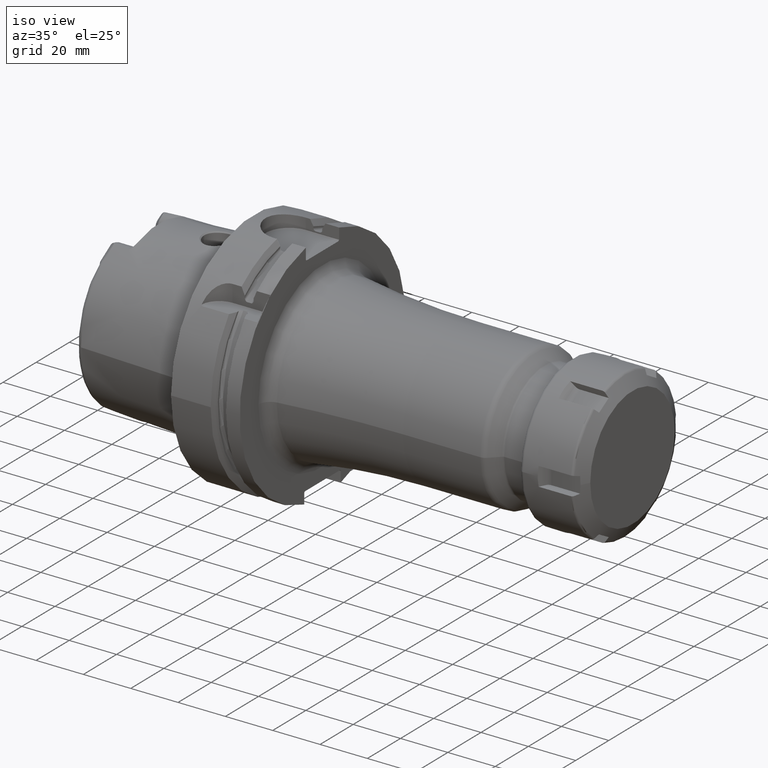
[diagram: clean part render]
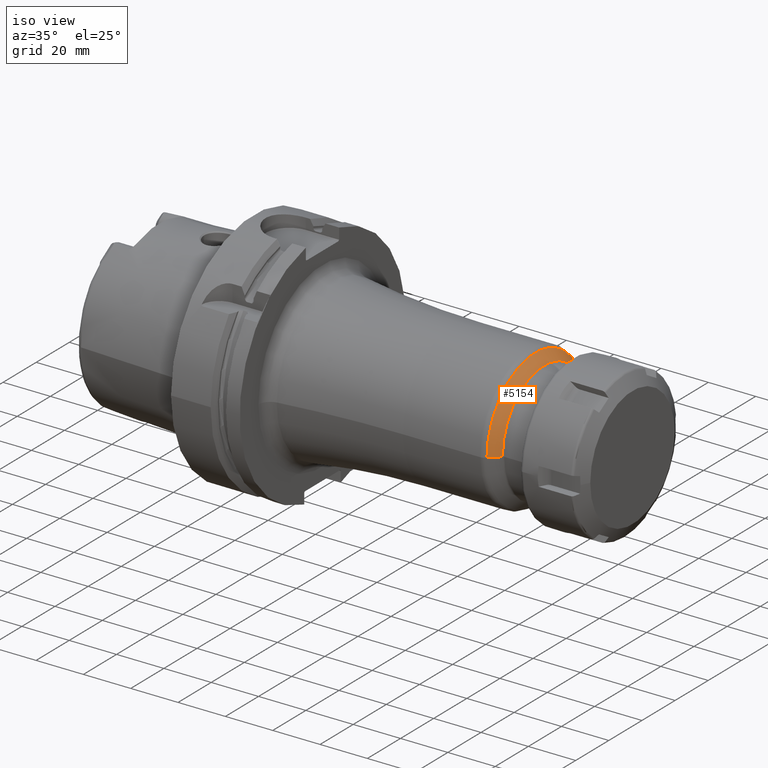
[diagram: same view with one face highlighted and labeled with its STEP entity id]
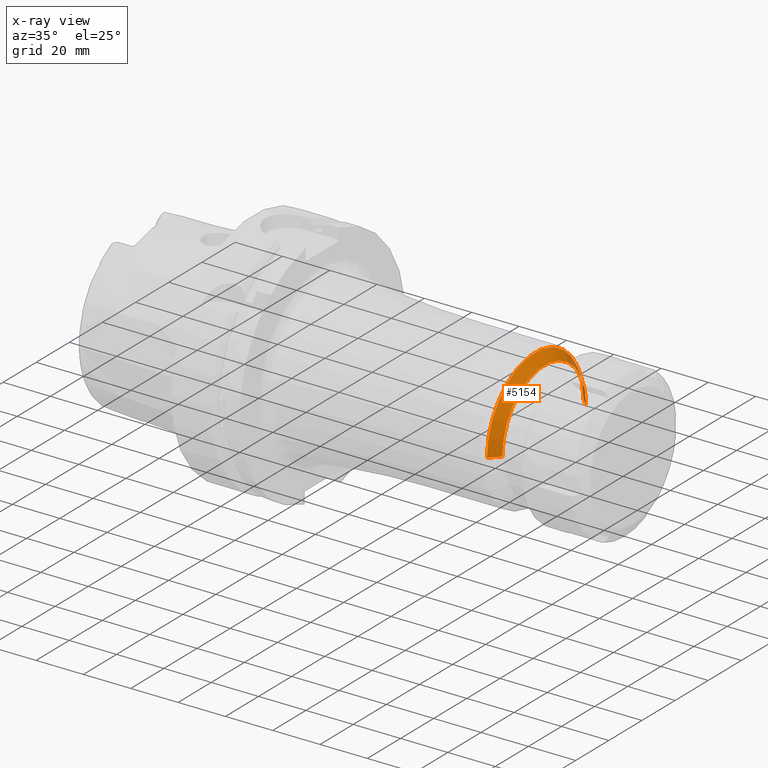
[diagram: x-ray of the same camera — body ghosted, the highlighted face saturated]
A machine part, iso view. The second image highlights one B-rep face of the part: STEP entity #5154.
The next image is the same camera in x-ray: the body ghosted, the highlighted face saturated — about 4% of this face is hidden behind the body in this view.
In plain terms, the highlighted conical surface has half-angle 45 deg.
Its self-contained STEP definition (entity closure, byte-faithful):
#1855=DIRECTION('',(-7.071067811865E-1,-7.071067811865E-1,-7.207394808961E-14));
#1856=VECTOR('',#1855,5.414213562373E0);
#1857=CARTESIAN_POINT('',(1.227071067812E2,-2.529289321881E1,
3.144848207620E-14));
#1858=LINE('',#1857,#1856);
#1864=DIRECTION('',(-7.071067811865E-1,7.071067811865E-1,7.241948890075E-14));
#1865=VECTOR('',#1864,5.414213562373E0);
#1866=CARTESIAN_POINT('',(1.227071067812E2,2.529289321881E1,
-3.222285359424E-14));
#1867=LINE('',#1866,#1865);
#1868=CARTESIAN_POINT('',(1.188786796564E2,0.E0,0.E0));
#1869=DIRECTION('',(-1.E0,0.E0,0.E0));
#1870=DIRECTION('',(0.E0,-1.E0,0.E0));
#1871=AXIS2_PLACEMENT_3D('',#1868,#1869,#1870);
#1873=CARTESIAN_POINT('',(1.227071067812E2,0.E0,0.E0));
#1874=DIRECTION('',(1.E0,0.E0,0.E0));
#1875=DIRECTION('',(0.E0,1.E0,0.E0));
#1876=AXIS2_PLACEMENT_3D('',#1873,#1874,#1875);
#3220=CARTESIAN_POINT('',(1.227071067812E2,-2.529289321881E1,0.E0));
#3221=CARTESIAN_POINT('',(1.227071067812E2,2.529289321881E1,0.E0));
#3222=VERTEX_POINT('',#3220);
#3223=VERTEX_POINT('',#3221);
#3232=CARTESIAN_POINT('',(1.188786796564E2,2.912132034356E1,0.E0));
#3233=CARTESIAN_POINT('',(1.188786796564E2,-2.912132034356E1,0.E0));
#3234=VERTEX_POINT('',#3232);
#3235=VERTEX_POINT('',#3233);
#5142=CARTESIAN_POINT('',(1.207928932188E2,0.E0,0.E0));
#5143=DIRECTION('',(-1.E0,0.E0,0.E0));
#5144=DIRECTION('',(0.E0,1.E0,0.E0));
#5145=AXIS2_PLACEMENT_3D('',#5142,#5143,#5144);
#5146=CONICAL_SURFACE('',#5145,2.720710678119E1,4.5E1);
#5147=ORIENTED_EDGE('',*,*,#5107,.T.);
#5148=ORIENTED_EDGE('',*,*,#5137,.F.);
#5150=ORIENTED_EDGE('',*,*,#5149,.T.);
#5151=ORIENTED_EDGE('',*,*,#5133,.T.);
#5152=EDGE_LOOP('',(#5147,#5148,#5150,#5151));
#5153=FACE_OUTER_BOUND('',#5152,.F.);
#5154=ADVANCED_FACE('',(#5153),#5146,.T.);
#1872=CIRCLE('',#1871,2.912132034356E1);
#1877=CIRCLE('',#1876,2.529289321881E1);
#5107=EDGE_CURVE('',#3235,#3234,#1872,.T.);
#5133=EDGE_CURVE('',#3222,#3235,#1858,.T.);
#5137=EDGE_CURVE('',#3223,#3234,#1867,.T.);
#5149=EDGE_CURVE('',#3223,#3222,#1877,.T.);